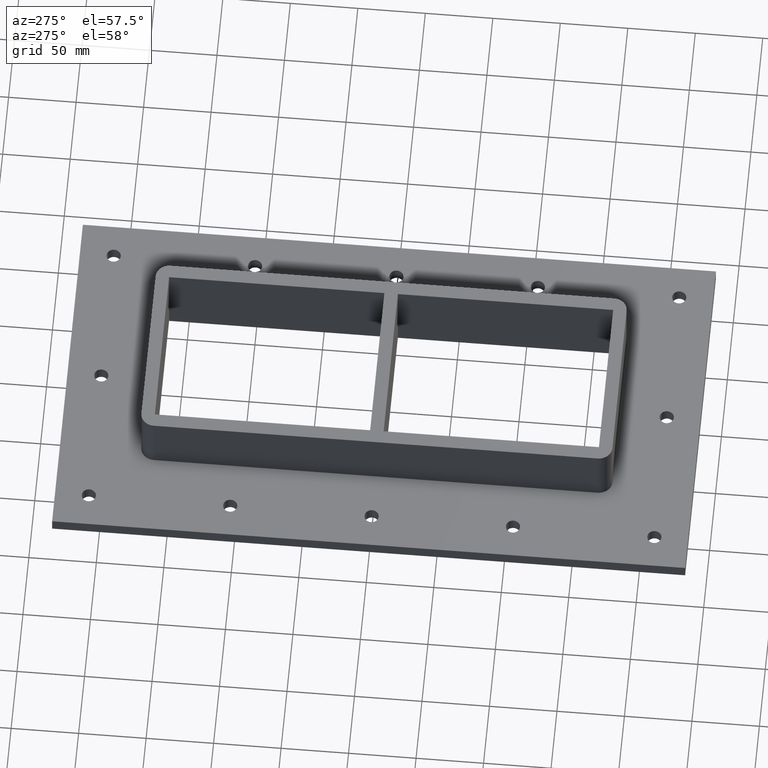
[diagram: clean part render]
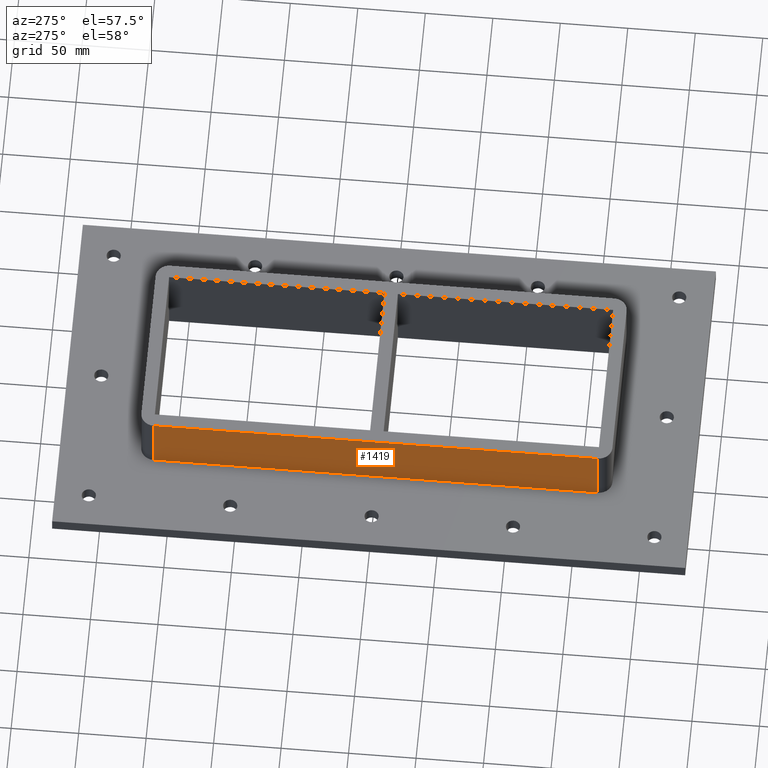
[diagram: same view with one face highlighted and labeled with its STEP entity id]
A machine part, auxiliary view. The second image highlights one B-rep face of the part: STEP entity #1419.
In plain terms, the highlighted planar face has unit normal (-1, 0, 0).
Its self-contained STEP definition (entity closure, byte-faithful):
#611=CARTESIAN_POINT('',(-70.249999999999986,-164.5,-17.0));
#612=VERTEX_POINT('',#611);
#620=CARTESIAN_POINT('',(-70.249999999999986,164.50000000000011,-17.0));
#621=VERTEX_POINT('',#620);
#622=CARTESIAN_POINT('',(-70.249999999999986,164.50000000000011,-17.0));
#623=DIRECTION('',(0.0,-1.0,0.0));
#624=VECTOR('',#623,329.00000000000011);
#625=LINE('',#622,#624);
#626=EDGE_CURVE('',#621,#612,#625,.T.);
#1134=CARTESIAN_POINT('',(-70.249999999999915,-164.5,30.0));
#1135=VERTEX_POINT('',#1134);
#1143=CARTESIAN_POINT('',(-70.249999999999915,-164.5,30.0));
#1144=DIRECTION('',(0.0,0.0,-1.0));
#1145=VECTOR('',#1144,47.0);
#1146=LINE('',#1143,#1145);
#1147=EDGE_CURVE('',#1135,#612,#1146,.T.);
#1158=CARTESIAN_POINT('',(-70.249999999999986,164.49999999999994,30.0));
#1159=VERTEX_POINT('',#1158);
#1160=CARTESIAN_POINT('',(-70.249999999999986,164.49999999999994,-17.0));
#1161=DIRECTION('',(0.0,0.0,1.0));
#1162=VECTOR('',#1161,47.0);
#1163=LINE('',#1160,#1162);
#1164=EDGE_CURVE('',#621,#1159,#1163,.T.);
#1403=CARTESIAN_POINT('',(-70.249999999999986,174.5,0.0));
#1404=DIRECTION('',(-1.0,0.0,0.0));
#1405=DIRECTION('',(0.0,-1.0,0.0));
#1406=AXIS2_PLACEMENT_3D('',#1403,#1404,#1405);
#1407=PLANE('',#1406);
#1408=ORIENTED_EDGE('',*,*,#626,.T.);
#1409=ORIENTED_EDGE('',*,*,#1147,.F.);
#1410=CARTESIAN_POINT('',(-70.249999999999986,164.49999999999997,30.0));
#1411=DIRECTION('',(0.0,-1.0,0.0));
#1412=VECTOR('',#1411,329.0);
#1413=LINE('',#1410,#1412);
#1414=EDGE_CURVE('',#1159,#1135,#1413,.T.);
#1415=ORIENTED_EDGE('',*,*,#1414,.F.);
#1416=ORIENTED_EDGE('',*,*,#1164,.F.);
#1417=EDGE_LOOP('',(#1408,#1409,#1415,#1416));
#1418=FACE_OUTER_BOUND('',#1417,.T.);
#1419=ADVANCED_FACE('',(#1418),#1407,.T.);